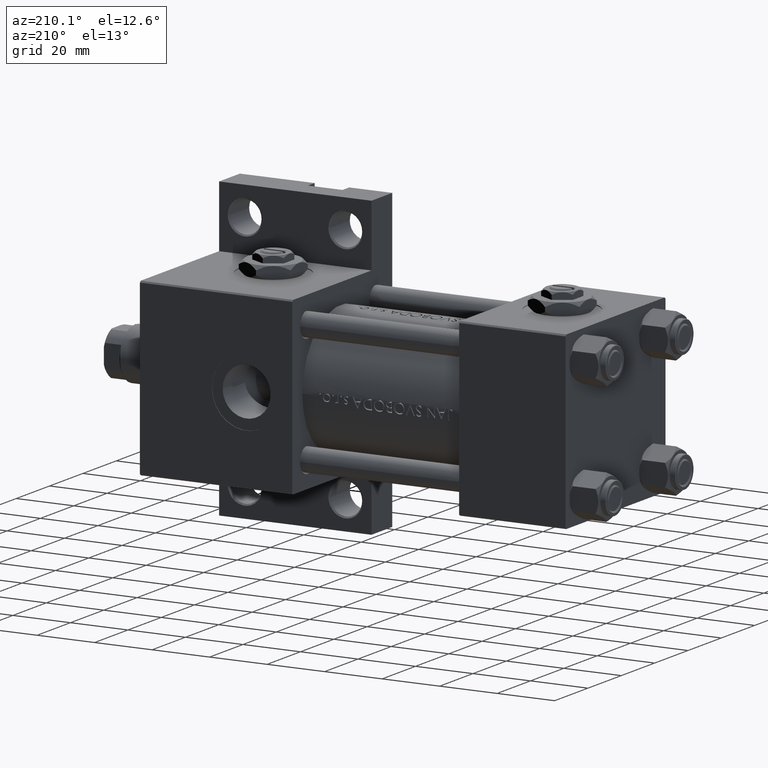
[diagram: clean part render]
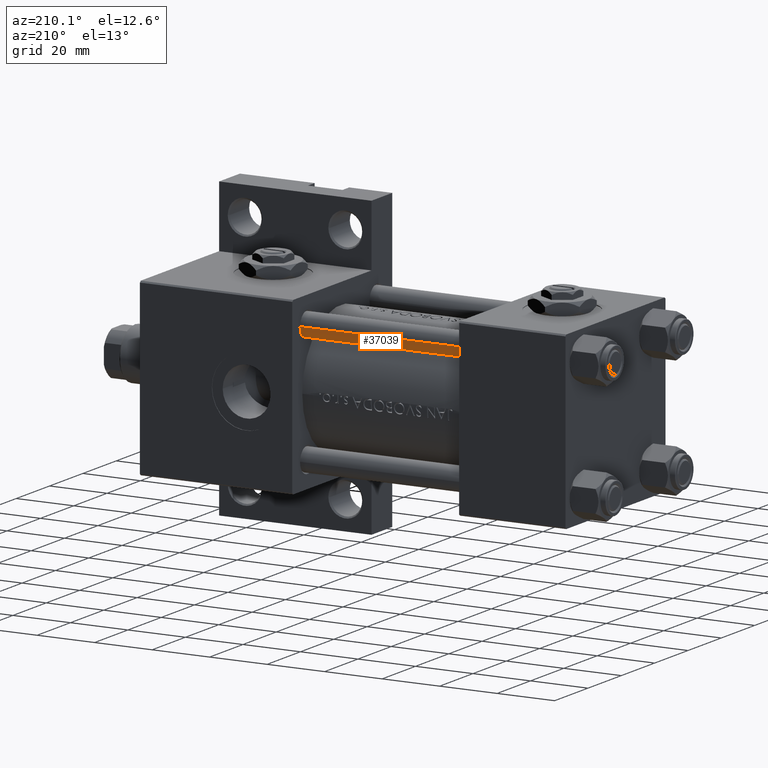
[diagram: same view with one face highlighted and labeled with its STEP entity id]
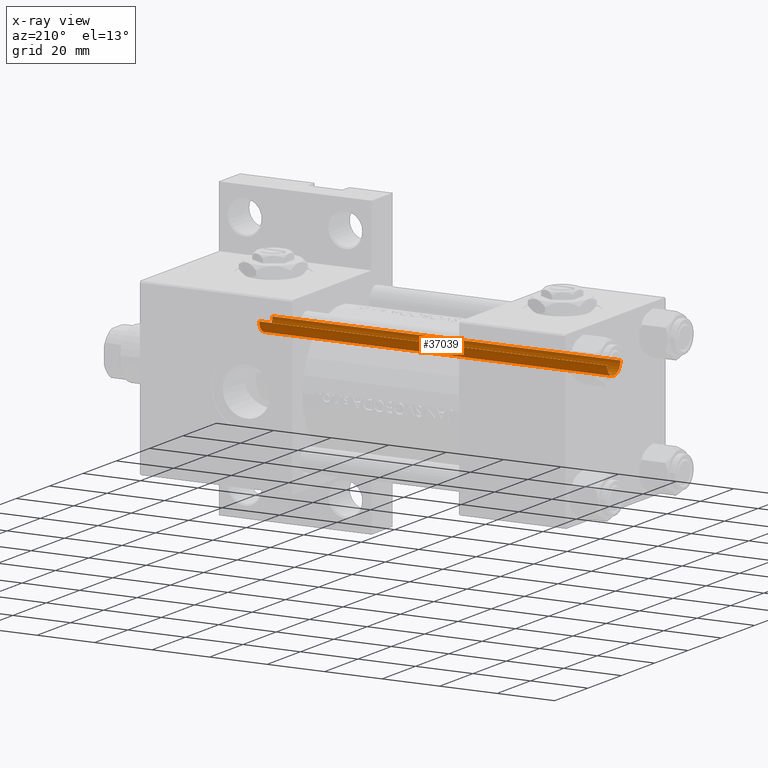
[diagram: x-ray of the same camera — body ghosted, the highlighted face saturated]
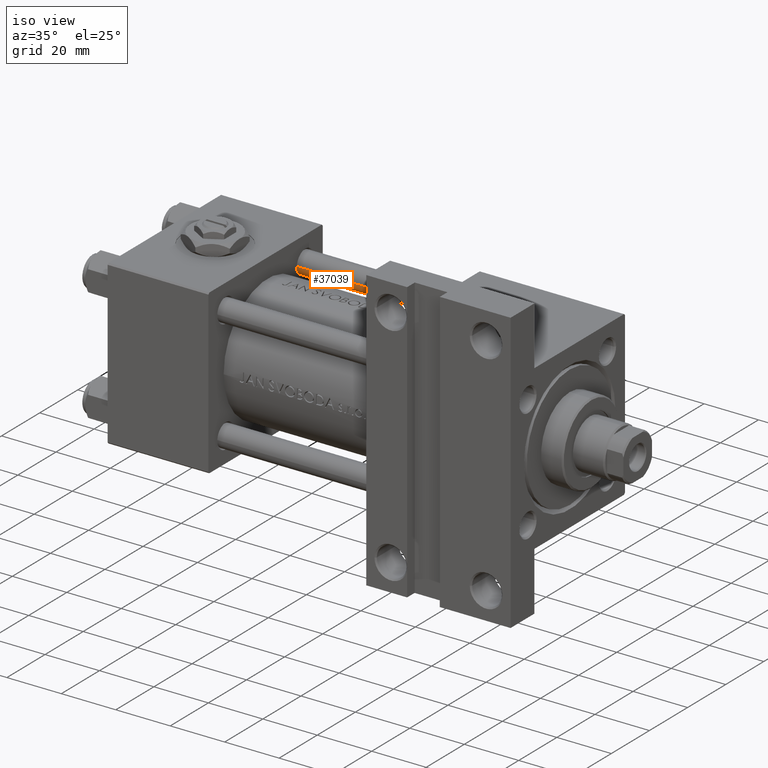
[diagram: same view with one face highlighted and labeled with its STEP entity id]
A machine part, auxiliary view. The second image highlights one B-rep face of the part: STEP entity #37039.
The next image is the same camera in x-ray: the body ghosted, the highlighted face saturated — about 0% of this face is hidden behind the body in this view.
A second angle (iso view) of the same face is appended — the face is thin or edge-on in the first view.
In plain terms, the highlighted cylindrical surface (edge-blend (fillet) strip) has radius 4 mm, axis along (1, -0, 0).
Its self-contained STEP definition (entity closure, byte-faithful):
#1660 = CIRCLE ( 'NONE', #30328, 4.000000000000000000 ) ;
#2031 = CARTESIAN_POINT ( 'NONE',  ( 4.000000000000000000, 4.898587196589411843E-16, 121.5000000000000426 ) ) ;
#3817 = VERTEX_POINT ( 'NONE', #47075 ) ;
#4253 = EDGE_CURVE ( 'NONE', #27984, #11190, #48796, .T. ) ;
#4527 = CARTESIAN_POINT ( 'NONE',  ( 0.000000000000000000, 0.000000000000000000, 121.5000000000000426 ) ) ;
#7473 = EDGE_CURVE ( 'NONE', #11190, #18694, #1660, .T. ) ;
#8994 = FACE_OUTER_BOUND ( 'NONE', #43275, .T. ) ;
#9759 = DIRECTION ( 'NONE',  ( -0.000000000000000000, -0.000000000000000000, -1.000000000000000000 ) ) ;
#10510 = DIRECTION ( 'NONE',  ( -0.000000000000000000, -0.000000000000000000, -1.000000000000000000 ) ) ;
#11190 = VERTEX_POINT ( 'NONE', #27719 ) ;
#12032 = ORIENTED_EDGE ( 'NONE', *, *, #4253, .T. ) ;
#12831 = CYLINDRICAL_SURFACE ( 'NONE', #50281, 4.000000000000000000 ) ;
#13798 = VECTOR ( 'NONE', #10510, 1000.000000000000000 ) ;
#17809 = CARTESIAN_POINT ( 'NONE',  ( -4.000000000000000000, 0.000000000000000000, 0.5000000000000559552 ) ) ;
#18694 = VERTEX_POINT ( 'NONE', #17809 ) ;
#19370 = LINE ( 'NONE', #43005, #46333 ) ;
#22085 = AXIS2_PLACEMENT_3D ( 'NONE', #4527, #32223, #44565 ) ;
#24411 = EDGE_CURVE ( 'NONE', #3817, #27984, #35203, .T. ) ;
#24931 = CARTESIAN_POINT ( 'NONE',  ( 0.000000000000000000, 0.000000000000000000, 0.5000000000000559552 ) ) ;
#27719 = CARTESIAN_POINT ( 'NONE',  ( 4.000000000000000000, 4.898587196589411843E-16, 0.5000000000000559552 ) ) ;
#27984 = VERTEX_POINT ( 'NONE', #2031 ) ;
#28006 = DIRECTION ( 'NONE',  ( -0.000000000000000000, -0.000000000000000000, 1.000000000000000000 ) ) ;
#30328 = AXIS2_PLACEMENT_3D ( 'NONE', #24931, #28006, #35965 ) ;
#32223 = DIRECTION ( 'NONE',  ( 0.000000000000000000, 0.000000000000000000, -1.000000000000000000 ) ) ;
#33361 = CARTESIAN_POINT ( 'NONE',  ( 4.000000000000000000, 4.898587196589411843E-16, 122.0000000000000000 ) ) ;
#35203 = CIRCLE ( 'NONE', #22085, 4.000000000000000000 ) ;
#35857 = ORIENTED_EDGE ( 'NONE', *, *, #40974, .F. ) ;
#35965 = DIRECTION ( 'NONE',  ( 1.000000000000000000, 0.000000000000000000, 0.000000000000000000 ) ) ;
#37039 = ADVANCED_FACE ( 'NONE', ( #8994 ), #12831, .T. ) ;
#37949 = ORIENTED_EDGE ( 'NONE', *, *, #24411, .T. ) ;
#40974 = EDGE_CURVE ( 'NONE', #3817, #18694, #19370, .T. ) ;
#43005 = CARTESIAN_POINT ( 'NONE',  ( -4.000000000000000000, 0.000000000000000000, 122.0000000000000000 ) ) ;
#43275 = EDGE_LOOP ( 'NONE', ( #37949, #12032, #47194, #35857 ) ) ;
#44441 = DIRECTION ( 'NONE',  ( -1.000000000000000000, 0.000000000000000000, 0.000000000000000000 ) ) ;
#44565 = DIRECTION ( 'NONE',  ( 1.000000000000000000, 0.000000000000000000, 0.000000000000000000 ) ) ;
#46333 = VECTOR ( 'NONE', #47364, 1000.000000000000000 ) ;
#47075 = CARTESIAN_POINT ( 'NONE',  ( -4.000000000000000000, 0.000000000000000000, 121.5000000000000426 ) ) ;
#47194 = ORIENTED_EDGE ( 'NONE', *, *, #7473, .T. ) ;
#47364 = DIRECTION ( 'NONE',  ( -0.000000000000000000, -0.000000000000000000, -1.000000000000000000 ) ) ;
#48539 = CARTESIAN_POINT ( 'NONE',  ( 0.000000000000000000, 0.000000000000000000, 122.0000000000000000 ) ) ;
#48796 = LINE ( 'NONE', #33361, #13798 ) ;
#50281 = AXIS2_PLACEMENT_3D ( 'NONE', #48539, #9759, #44441 ) ;